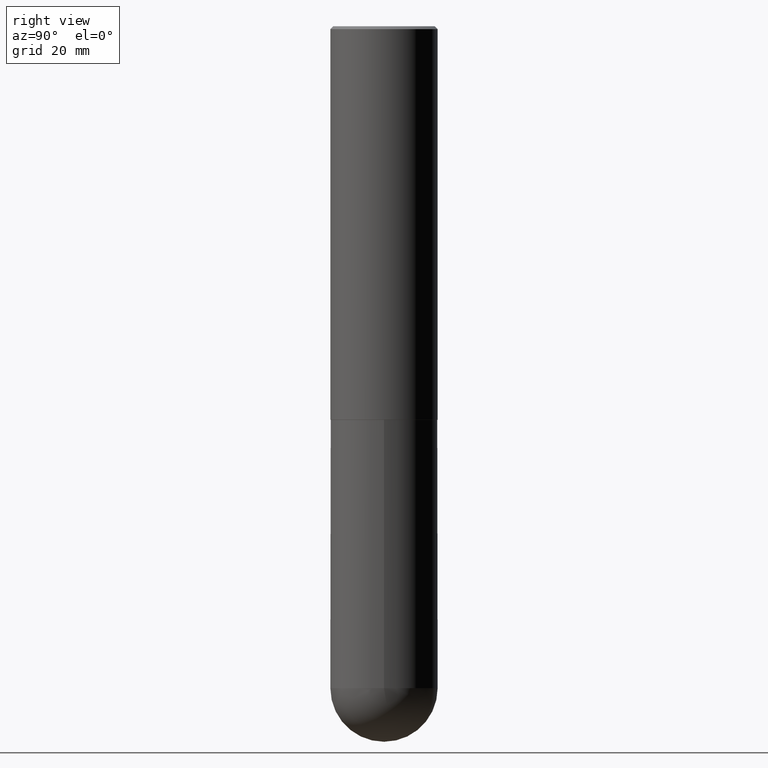
[diagram: clean part render]
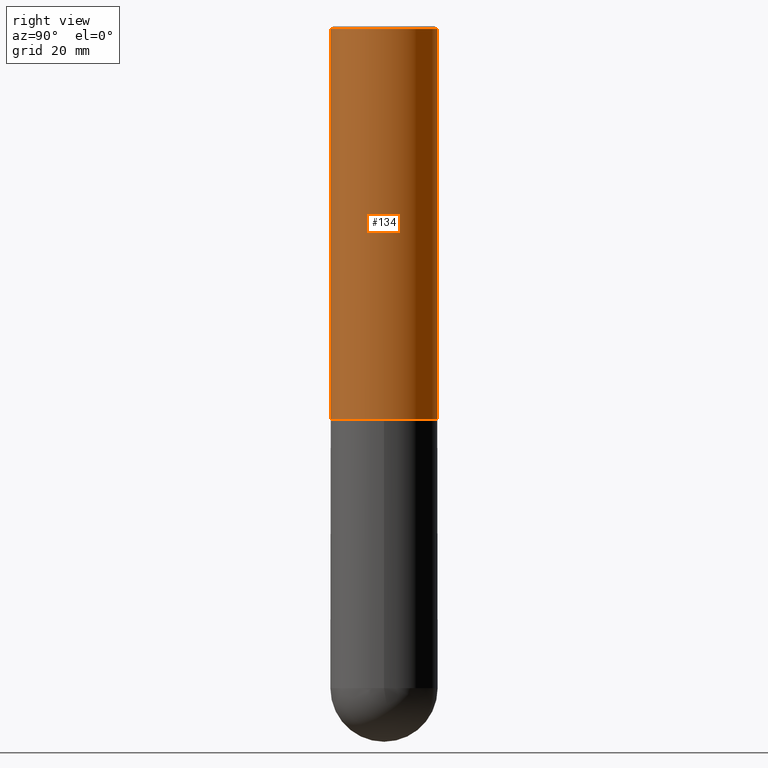
[diagram: same view with one face highlighted and labeled with its STEP entity id]
A machine part, right view. The second image highlights one B-rep face of the part: STEP entity #134.
In plain terms, the highlighted cylindrical surface (partial cylindrical patch) has radius 9.525 mm, axis along (-0, 0, 1).
Its self-contained STEP definition (entity closure, byte-faithful):
#4 = VERTEX_POINT ( 'NONE', #203 ) ;
#7 = CARTESIAN_POINT ( 'NONE',  ( 2.664535259100411985E-15, 0.3749999999999907851, -2.749000000000000998 ) ) ;
#34 = AXIS2_PLACEMENT_3D ( 'NONE', #361, #76, #193 ) ;
#39 = CYLINDRICAL_SURFACE ( 'NONE', #57, 0.3750000000000002220 ) ;
#53 = LINE ( 'NONE', #139, #89 ) ;
#54 = VERTEX_POINT ( 'NONE', #79 ) ;
#57 = AXIS2_PLACEMENT_3D ( 'NONE', #159, #293, #106 ) ;
#65 = DIRECTION ( 'NONE',  ( -2.445212074138828297E-29, 3.491848993745739476E-15, 1.000000000000000000 ) ) ;
#76 = DIRECTION ( 'NONE',  ( -2.445212074138828297E-29, 3.491848993745739476E-15, 1.000000000000000000 ) ) ;
#79 = CARTESIAN_POINT ( 'NONE',  ( -2.618611004132285330E-15, -0.3750000000000100475, -2.748999999999999222 ) ) ;
#88 = ORIENTED_EDGE ( 'NONE', *, *, #113, .F. ) ;
#89 = VECTOR ( 'NONE', #114, 39.37007874015748143 ) ;
#106 = DIRECTION ( 'NONE',  ( -6.982962677686266711E-15, -1.000000000000000000, 3.491848993745739870E-15 ) ) ;
#110 = DIRECTION ( 'NONE',  ( -6.982962677686266711E-15, -1.000000000000000000, 3.494488891895537218E-15 ) ) ;
#113 = EDGE_CURVE ( 'NONE', #398, #4, #372, .T. ) ;
#114 = DIRECTION ( 'NONE',  ( -2.445212074138828297E-29, 3.491848993745739476E-15, 1.000000000000000000 ) ) ;
#118 = VECTOR ( 'NONE', #65, 39.37007874015748143 ) ;
#134 = ADVANCED_FACE ( 'NONE', ( #190 ), #39, .T. ) ;
#139 = CARTESIAN_POINT ( 'NONE',  ( -2.618611004132351594E-15, -0.3750000000000002220, 1.309443372654653240E-15 ) ) ;
#144 = EDGE_CURVE ( 'NONE', #54, #392, #155, .T. ) ;
#155 = CIRCLE ( 'NONE', #34, 0.3750000000000004441 ) ;
#159 = CARTESIAN_POINT ( 'NONE',  ( 0.000000000000000000, 0.000000000000000000, 0.000000000000000000 ) ) ;
#168 = EDGE_CURVE ( 'NONE', #54, #398, #53, .T. ) ;
#170 = EDGE_CURVE ( 'NONE', #392, #4, #288, .T. ) ;
#186 = AXIS2_PLACEMENT_3D ( 'NONE', #270, #298, #110 ) ;
#190 = FACE_OUTER_BOUND ( 'NONE', #377, .T. ) ;
#193 = DIRECTION ( 'NONE',  ( -6.982962677686265922E-15, -1.000000000000000000, 2.913971193241877216E-15 ) ) ;
#198 = CARTESIAN_POINT ( 'NONE',  ( -2.572686749164323153E-15, -0.3750000000000000555, -0.01999999999999877570 ) ) ;
#203 = CARTESIAN_POINT ( 'NONE',  ( 2.618611004132350016E-15, 0.3749999999999998890, -0.02000000000000139513 ) ) ;
#207 = ORIENTED_EDGE ( 'NONE', *, *, #170, .T. ) ;
#244 = ORIENTED_EDGE ( 'NONE', *, *, #168, .F. ) ;
#270 = CARTESIAN_POINT ( 'NONE',  ( 4.890424148277678035E-31, -6.983697987491508978E-17, -0.02000000000000008715 ) ) ;
#288 = LINE ( 'NONE', #387, #118 ) ;
#293 = DIRECTION ( 'NONE',  ( -2.445212074138828297E-29, 3.491848993745739476E-15, 1.000000000000000000 ) ) ;
#298 = DIRECTION ( 'NONE',  ( -2.445212074138828297E-29, 3.491848993745739476E-15, 1.000000000000000000 ) ) ;
#319 = ORIENTED_EDGE ( 'NONE', *, *, #144, .T. ) ;
#361 = CARTESIAN_POINT ( 'NONE',  ( 6.721887991807639758E-29, -9.599092883807038608E-15, -2.749000000000000110 ) ) ;
#372 = CIRCLE ( 'NONE', #186, 0.3749999999999999445 ) ;
#377 = EDGE_LOOP ( 'NONE', ( #319, #207, #88, #244 ) ) ;
#387 = CARTESIAN_POINT ( 'NONE',  ( 2.664535259100376880E-15, 0.3750000000000002220, -1.309443372654653240E-15 ) ) ;
#392 = VERTEX_POINT ( 'NONE', #7 ) ;
#398 = VERTEX_POINT ( 'NONE', #198 ) ;